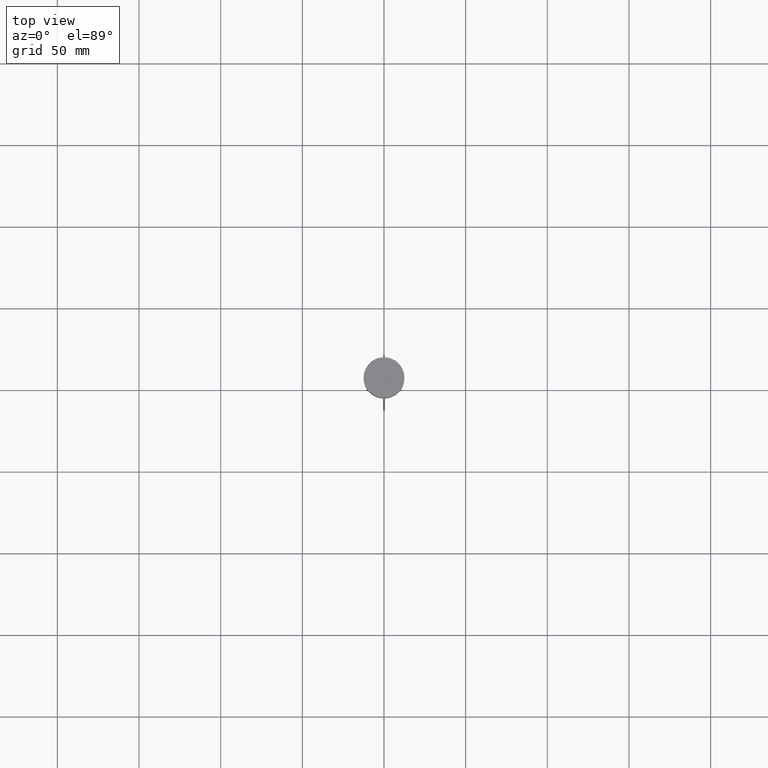
[diagram: clean part render]
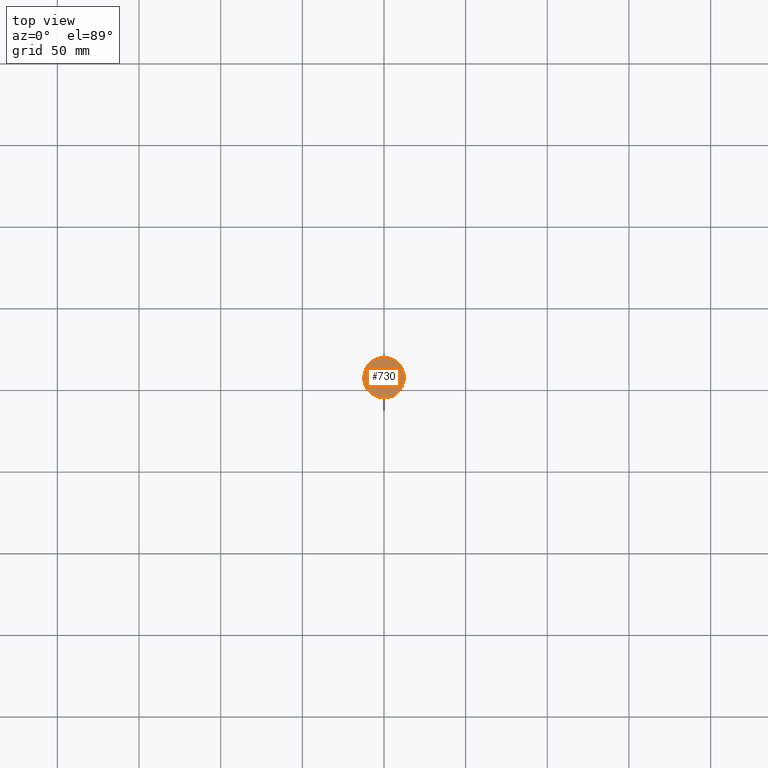
[diagram: same view with one face highlighted and labeled with its STEP entity id]
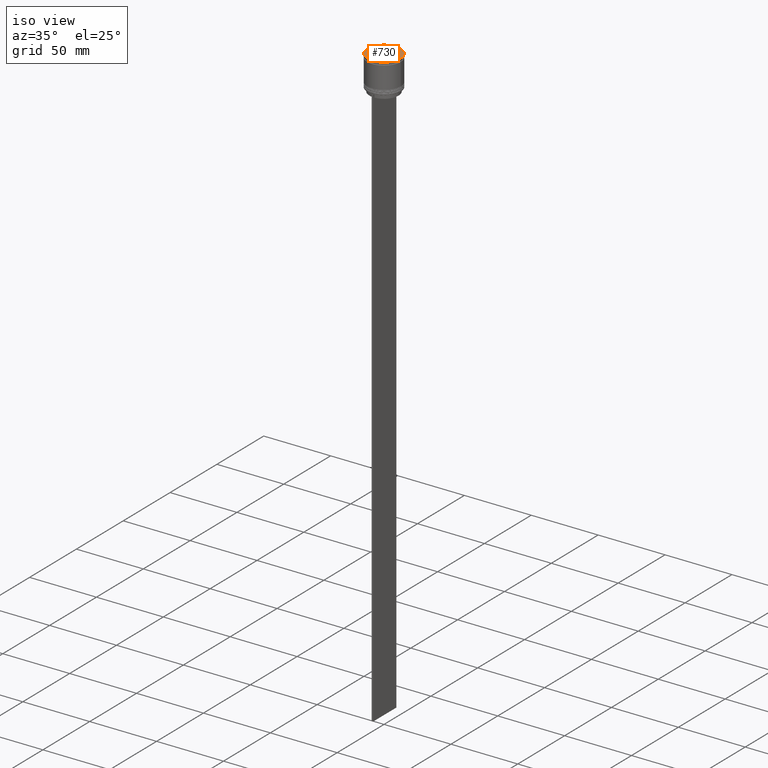
[diagram: same view with one face highlighted and labeled with its STEP entity id]
A machine part, top view. The second image highlights one B-rep face of the part: STEP entity #730.
A second angle (iso view) of the same face is appended — the face is thin or edge-on in the first view.
In plain terms, the highlighted planar face has unit normal (0, -0, 1).
Its self-contained STEP definition (entity closure, byte-faithful):
#20 = CIRCLE ( 'NONE', #664, 12.39999999999999858 ) ;
#70 = ORIENTED_EDGE ( 'NONE', *, *, #806, .T. ) ;
#72 = CARTESIAN_POINT ( 'NONE',  ( 2.100000000000007194, -1.212435565298218165, 0.000000000000000000 ) ) ;
#80 = CARTESIAN_POINT ( 'NONE',  ( -0.05000000000000367345, 2.396003617136952535, 0.000000000000000000 ) ) ;
#98 = DIRECTION ( 'NONE',  ( 0.000000000000000000, -0.000000000000000000, 1.000000000000000000 ) ) ;
#145 = DIRECTION ( 'NONE',  ( 0.000000000000000000, 1.000000000000000000, 0.000000000000000000 ) ) ;
#178 = VERTEX_POINT ( 'NONE', #290 ) ;
#190 = AXIS2_PLACEMENT_3D ( 'NONE', #1553, #98, #741 ) ;
#197 = VERTEX_POINT ( 'NONE', #1744 ) ;
#257 = VECTOR ( 'NONE', #1210, 1000.000000000000114 ) ;
#260 = FACE_OUTER_BOUND ( 'NONE', #274, .T. ) ;
#274 = EDGE_LOOP ( 'NONE', ( #1738, #1293 ) ) ;
#290 = CARTESIAN_POINT ( 'NONE',  ( 6.025829263321777976E-16, -2.424871130596436775, 0.000000000000000000 ) ) ;
#296 = DIRECTION ( 'NONE',  ( -0.000000000000000000, -0.000000000000000000, 1.000000000000000000 ) ) ;
#306 = LINE ( 'NONE', #1732, #1130 ) ;
#312 = VERTEX_POINT ( 'NONE', #72 ) ;
#315 = ORIENTED_EDGE ( 'NONE', *, *, #965, .T. ) ;
#335 = DIRECTION ( 'NONE',  ( 0.8660254037844387076, -0.4999999999999998890, 0.000000000000000000 ) ) ;
#342 = CARTESIAN_POINT ( 'NONE',  ( 2.100000000000007194, 1.212435565298217943, 0.000000000000000000 ) ) ;
#350 = DIRECTION ( 'NONE',  ( -0.8660254037844385966, -0.5000000000000002220, 0.000000000000000000 ) ) ;
#359 = VECTOR ( 'NONE', #350, 999.9999999999998863 ) ;
#438 = EDGE_CURVE ( 'NONE', #867, #197, #20, .T. ) ;
#439 = DIRECTION ( 'NONE',  ( 1.000000000000000000, 0.000000000000000000, 0.000000000000000000 ) ) ;
#448 = LINE ( 'NONE', #794, #1711 ) ;
#454 = VERTEX_POINT ( 'NONE', #342 ) ;
#553 = LINE ( 'NONE', #80, #1816 ) ;
#654 = CARTESIAN_POINT ( 'NONE',  ( 0.000000000000000000, 0.000000000000000000, 0.000000000000000000 ) ) ;
#664 = AXIS2_PLACEMENT_3D ( 'NONE', #654, #296, #439 ) ;
#670 = EDGE_CURVE ( 'NONE', #890, #1740, #553, .T. ) ;
#721 = EDGE_CURVE ( 'NONE', #178, #1654, #1540, .T. ) ;
#730 = ADVANCED_FACE ( 'NONE', ( #260, #1672 ), #896, .T. ) ;
#733 = CARTESIAN_POINT ( 'NONE',  ( -2.050000000000003819, -1.241303078757702183, 0.000000000000000000 ) ) ;
#741 = DIRECTION ( 'NONE',  ( 1.000000000000000000, 0.000000000000000000, 0.000000000000000000 ) ) ;
#783 = CARTESIAN_POINT ( 'NONE',  ( 0.000000000000000000, 0.000000000000000000, 0.000000000000000000 ) ) ;
#794 = CARTESIAN_POINT ( 'NONE',  ( 2.100000000000007194, -1.154700538379251684, 0.000000000000000000 ) ) ;
#806 = EDGE_CURVE ( 'NONE', #454, #312, #448, .T. ) ;
#828 = EDGE_LOOP ( 'NONE', ( #315, #830, #1251, #1376, #845, #70 ) ) ;
#830 = ORIENTED_EDGE ( 'NONE', *, *, #721, .T. ) ;
#840 = EDGE_CURVE ( 'NONE', #1654, #890, #306, .T. ) ;
#845 = ORIENTED_EDGE ( 'NONE', *, *, #1353, .T. ) ;
#853 = EDGE_CURVE ( 'NONE', #197, #867, #1641, .T. ) ;
#867 = VERTEX_POINT ( 'NONE', #1411 ) ;
#887 = VECTOR ( 'NONE', #335, 1000.000000000000000 ) ;
#890 = VERTEX_POINT ( 'NONE', #1460 ) ;
#896 = PLANE ( 'NONE',  #190 ) ;
#935 = LINE ( 'NONE', #1793, #887 ) ;
#964 = DIRECTION ( 'NONE',  ( -0.000000000000000000, -0.000000000000000000, 1.000000000000000000 ) ) ;
#965 = EDGE_CURVE ( 'NONE', #312, #178, #1960, .T. ) ;
#1016 = CARTESIAN_POINT ( 'NONE',  ( 7.253222183746967031E-17, 2.424871130596435886, 0.000000000000000000 ) ) ;
#1130 = VECTOR ( 'NONE', #145, 1000.000000000000000 ) ;
#1210 = DIRECTION ( 'NONE',  ( -0.8660254037844388186, 0.4999999999999997780, 0.000000000000000000 ) ) ;
#1251 = ORIENTED_EDGE ( 'NONE', *, *, #840, .T. ) ;
#1270 = DIRECTION ( 'NONE',  ( 1.000000000000000000, 0.000000000000000000, 0.000000000000000000 ) ) ;
#1293 = ORIENTED_EDGE ( 'NONE', *, *, #853, .T. ) ;
#1353 = EDGE_CURVE ( 'NONE', #1740, #454, #935, .T. ) ;
#1365 = DIRECTION ( 'NONE',  ( 0.8660254037844387076, 0.4999999999999998890, 0.000000000000000000 ) ) ;
#1376 = ORIENTED_EDGE ( 'NONE', *, *, #670, .T. ) ;
#1397 = DIRECTION ( 'NONE',  ( 0.000000000000000000, -1.000000000000000000, 0.000000000000000000 ) ) ;
#1411 = CARTESIAN_POINT ( 'NONE',  ( 12.39999999999999858, 0.000000000000000000, 0.000000000000000000 ) ) ;
#1460 = CARTESIAN_POINT ( 'NONE',  ( -2.100000000000007194, 1.212435565298217943, 0.000000000000000000 ) ) ;
#1540 = LINE ( 'NONE', #733, #257 ) ;
#1553 = CARTESIAN_POINT ( 'NONE',  ( 0.000000000000000000, 0.000000000000000000, 0.000000000000000000 ) ) ;
#1641 = CIRCLE ( 'NONE', #2013, 12.39999999999999858 ) ;
#1654 = VERTEX_POINT ( 'NONE', #2039 ) ;
#1672 = FACE_BOUND ( 'NONE', #828, .T. ) ;
#1711 = VECTOR ( 'NONE', #1397, 1000.000000000000000 ) ;
#1732 = CARTESIAN_POINT ( 'NONE',  ( -2.100000000000007194, 1.154700538379251018, 0.000000000000000000 ) ) ;
#1738 = ORIENTED_EDGE ( 'NONE', *, *, #438, .T. ) ;
#1740 = VERTEX_POINT ( 'NONE', #1016 ) ;
#1744 = CARTESIAN_POINT ( 'NONE',  ( -12.39999999999999858, 1.524685264938454448E-15, 0.000000000000000000 ) ) ;
#1788 = CARTESIAN_POINT ( 'NONE',  ( 0.05000000000000407591, -2.396003617136953423, 0.000000000000000000 ) ) ;
#1793 = CARTESIAN_POINT ( 'NONE',  ( 2.050000000000003819, 1.241303078757701295, 0.000000000000000000 ) ) ;
#1816 = VECTOR ( 'NONE', #1365, 1000.000000000000000 ) ;
#1960 = LINE ( 'NONE', #1788, #359 ) ;
#2013 = AXIS2_PLACEMENT_3D ( 'NONE', #783, #964, #1270 ) ;
#2039 = CARTESIAN_POINT ( 'NONE',  ( -2.100000000000007194, -1.212435565298218831, 0.000000000000000000 ) ) ;